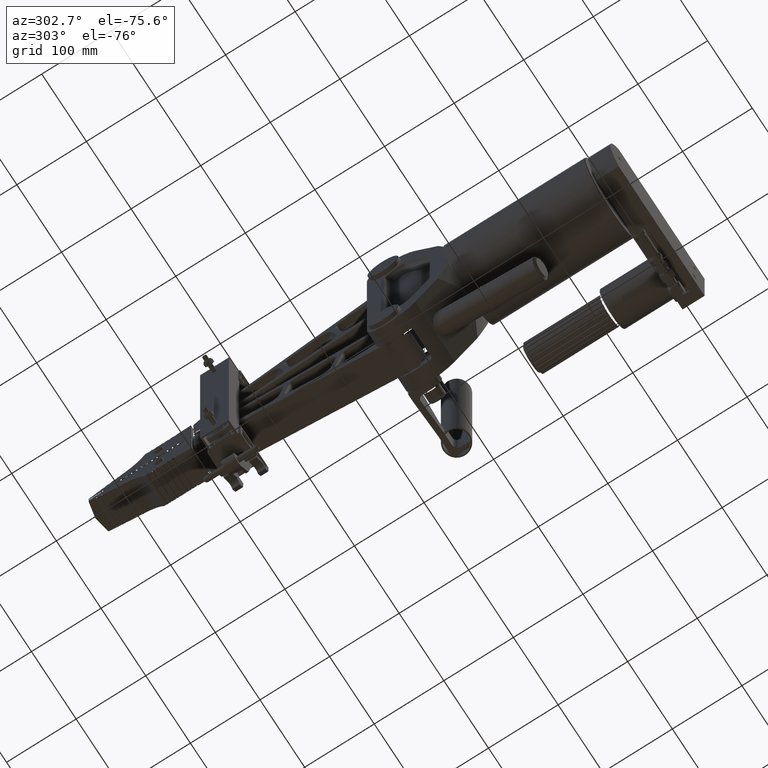
[diagram: clean part render]
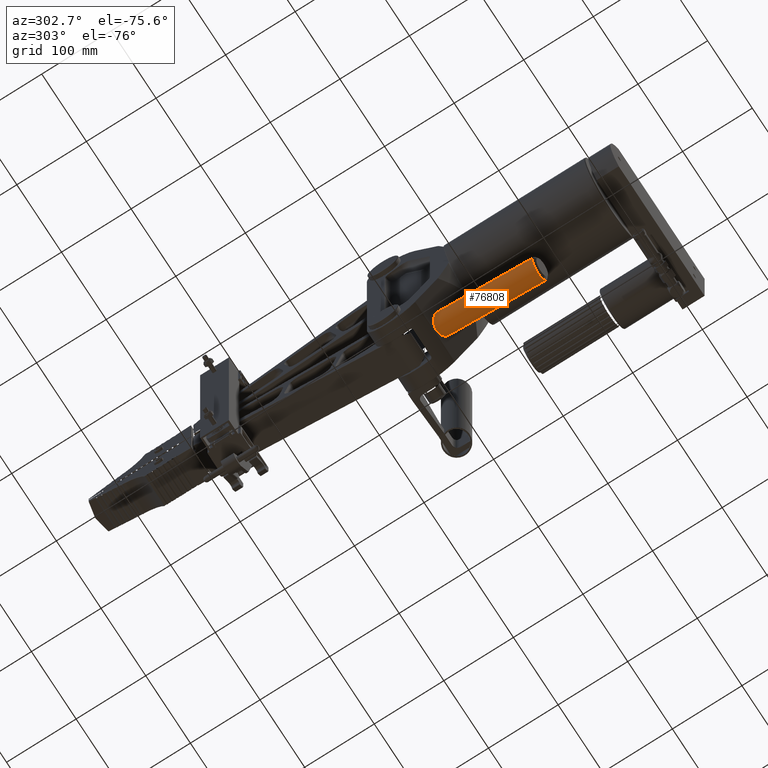
[diagram: same view with one face highlighted and labeled with its STEP entity id]
A machine part, auxiliary view. The second image highlights one B-rep face of the part: STEP entity #76808.
In plain terms, the highlighted cylindrical surface (edge-blend (fillet) strip) has radius 15.875 mm, axis along (-0, 0.9829, 0.1843).
Its self-contained STEP definition (entity closure, byte-faithful):
#1867 = DIRECTION ( 'NONE',  ( -1.000000000000000000, -8.741913579725644300E-016, 0.0000000000000000000 ) ) ;
#1872 = DIRECTION ( 'NONE',  ( -7.192597212268836400E-016, 0.9828615541342133900, 0.1843452342884922000 ) ) ;
#1873 = CARTESIAN_POINT ( 'NONE',  ( 2.569219467396086600E-015, -4.165015285868991900, -5.309110525389860100 ) ) ;
#3404 = CIRCLE ( 'NONE', #88458, 0.6249999999999998900 ) ;
#3405 = LINE ( 'NONE', #6554, #3407 ) ;
#3407 = VECTOR ( 'NONE', #6555, 39.37007874015748900 ) ;
#3408 = LINE ( 'NONE', #6556, #3409 ) ;
#3409 = VECTOR ( 'NONE', #6557, 39.37007874015748900 ) ;
#6512 = CARTESIAN_POINT ( 'NONE',  ( -1.793695102726313200E-015, 1.815965982942167500, -4.823217683956301000 ) ) ;
#6516 = CARTESIAN_POINT ( 'NONE',  ( 0.3661165235168139000, 1.815965982942167500, -4.823217683956300100 ) ) ;
#6517 = CARTESIAN_POINT ( 'NONE',  ( 0.6249999999999985600, 1.653388455148050000, -4.590312975181135800 ) ) ;
#6518 = CARTESIAN_POINT ( 'NONE',  ( 0.6249999999999983300, 1.423469110404519800, -4.260935977290744200 ) ) ;
#6536 = CARTESIAN_POINT ( 'NONE',  ( 2.479312002242725300E-015, -4.042157591602214800, -5.286067371103797500 ) ) ;
#6538 = DIRECTION ( 'NONE',  ( -7.192597212268836400E-016, 0.9828615541342133900, 0.1843452342884922000 ) ) ;
#6539 = DIRECTION ( 'NONE',  ( 1.000000000000000000, 8.741913579725644300E-016, 0.0000000000000000000 ) ) ;
#6547 = CARTESIAN_POINT ( 'NONE',  ( -0.6250000000000014400, 1.423469110404518700, -4.260935977290744200 ) ) ;
#6551 = CARTESIAN_POINT ( 'NONE',  ( -0.6250000000000020000, 1.653388455148049300, -4.590312975181135800 ) ) ;
#6552 = CARTESIAN_POINT ( 'NONE',  ( -0.3661165235168175000, 1.815965982942167500, -4.823217683956300100 ) ) ;
#6553 = CARTESIAN_POINT ( 'NONE',  ( -1.793695102726313200E-015, 1.815965982942167500, -4.823217683956301000 ) ) ;
#6554 = CARTESIAN_POINT ( 'NONE',  ( -0.6249999999999973400, -4.165015285868992800, -5.309110525389860100 ) ) ;
#6555 = DIRECTION ( 'NONE',  ( -7.192597212268834400E-016, 0.9828615541342132800, 0.1843452342884921700 ) ) ;
#6556 = CARTESIAN_POINT ( 'NONE',  ( 0.6250000000000024400, -4.165015285868991900, -5.309110525389860100 ) ) ;
#6557 = DIRECTION ( 'NONE',  ( -7.192597212268834400E-016, 0.9828615541342132800, 0.1843452342884921700 ) ) ;
#27833 = CARTESIAN_POINT ( 'NONE',  ( 0.6249999999999983300, 1.423469110404519800, -4.260935977290744200 ) ) ;
#27834 = CARTESIAN_POINT ( 'NONE',  ( -1.793695102726313200E-015, 1.815965982942167500, -4.823217683956301000 ) ) ;
#27835 = CARTESIAN_POINT ( 'NONE',  ( -0.6249999999999973400, -4.042157591602214800, -5.286067371103799300 ) ) ;
#27836 = CARTESIAN_POINT ( 'NONE',  ( 0.6250000000000018900, -4.042157591602213900, -5.286067371103799300 ) ) ;
#27837 = CARTESIAN_POINT ( 'NONE',  ( -0.6250000000000014400, 1.423469110404518700, -4.260935977290744200 ) ) ;
#56163 =( BOUNDED_CURVE ( )  B_SPLINE_CURVE ( 3, ( #6547, #6551, #6552, #6553 ),
 .UNSPECIFIED., .F., .T. ) 
 B_SPLINE_CURVE_WITH_KNOTS ( ( 4, 4 ),
 ( 4.712388980384689700, 6.283185307179586200 ),
 .UNSPECIFIED. ) 
 CURVE ( )  GEOMETRIC_REPRESENTATION_ITEM ( )  RATIONAL_B_SPLINE_CURVE ( ( 1.000000000000000000, 0.8047378541243649400, 0.8047378541243649400, 1.000000000000000000 ) ) 
 REPRESENTATION_ITEM ( '' )  );
#56209 =( BOUNDED_CURVE ( )  B_SPLINE_CURVE ( 3, ( #6512, #6516, #6517, #6518 ),
 .UNSPECIFIED., .F., .F. ) 
 B_SPLINE_CURVE_WITH_KNOTS ( ( 4, 4 ),
 ( 0.0000000000000000000, 1.570796326794896800 ),
 .UNSPECIFIED. ) 
 CURVE ( )  GEOMETRIC_REPRESENTATION_ITEM ( )  RATIONAL_B_SPLINE_CURVE ( ( 1.000000000000000000, 0.8047378541243649400, 0.8047378541243649400, 1.000000000000000000 ) ) 
 REPRESENTATION_ITEM ( '' )  );
#59617 = EDGE_CURVE ( 'NONE', #94502, #94501, #56209, .T. ) ;
#59632 = EDGE_CURVE ( 'NONE', #94504, #94503, #3404, .T. ) ;
#59641 = EDGE_CURVE ( 'NONE', #94505, #94502, #56163, .T. ) ;
#59643 = EDGE_CURVE ( 'NONE', #94503, #94505, #3405, .T. ) ;
#59645 = EDGE_CURVE ( 'NONE', #94504, #94501, #3408, .T. ) ;
#76808 = ADVANCED_FACE ( 'NONE', ( #107814 ), #107824, .T. ) ;
#88458 = AXIS2_PLACEMENT_3D ( 'NONE', #6536, #6538, #6539 ) ;
#90077 = EDGE_LOOP ( 'NONE', ( #91768, #91770, #91772, #91774, #91778 ) ) ;
#90772 = AXIS2_PLACEMENT_3D ( 'NONE', #1873, #1872, #1867 ) ;
#91768 = ORIENTED_EDGE ( 'NONE', *, *, #59645, .F. ) ;
#91770 = ORIENTED_EDGE ( 'NONE', *, *, #59632, .T. ) ;
#91772 = ORIENTED_EDGE ( 'NONE', *, *, #59643, .T. ) ;
#91774 = ORIENTED_EDGE ( 'NONE', *, *, #59641, .T. ) ;
#91778 = ORIENTED_EDGE ( 'NONE', *, *, #59617, .T. ) ;
#94501 = VERTEX_POINT ( 'NONE', #27833 ) ;
#94502 = VERTEX_POINT ( 'NONE', #27834 ) ;
#94503 = VERTEX_POINT ( 'NONE', #27835 ) ;
#94504 = VERTEX_POINT ( 'NONE', #27836 ) ;
#94505 = VERTEX_POINT ( 'NONE', #27837 ) ;
#107814 = FACE_OUTER_BOUND ( 'NONE', #90077, .T. ) ;
#107824 = CYLINDRICAL_SURFACE ( 'NONE', #90772, 0.6249999999999998900 ) ;